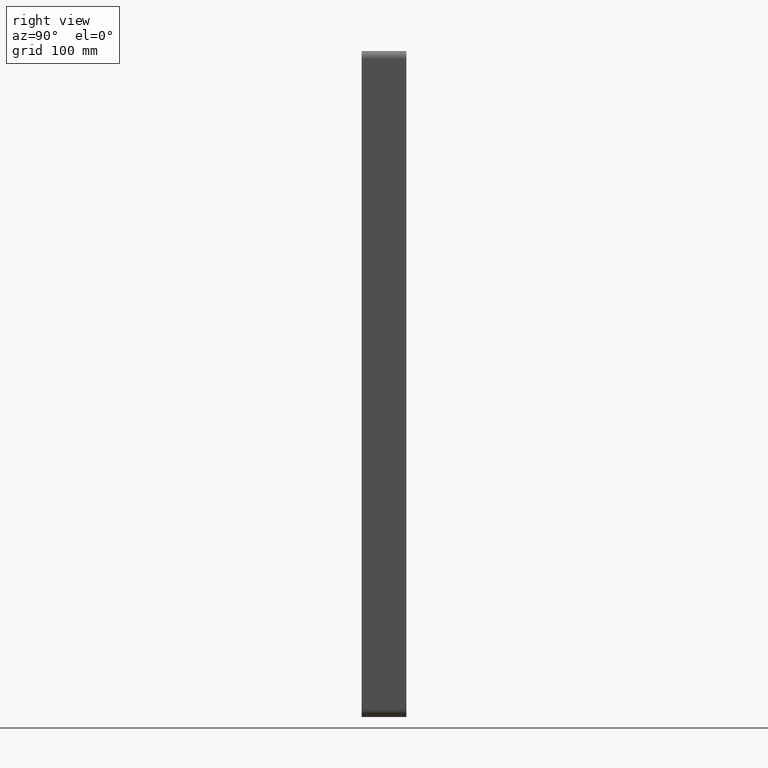
[diagram: clean part render]
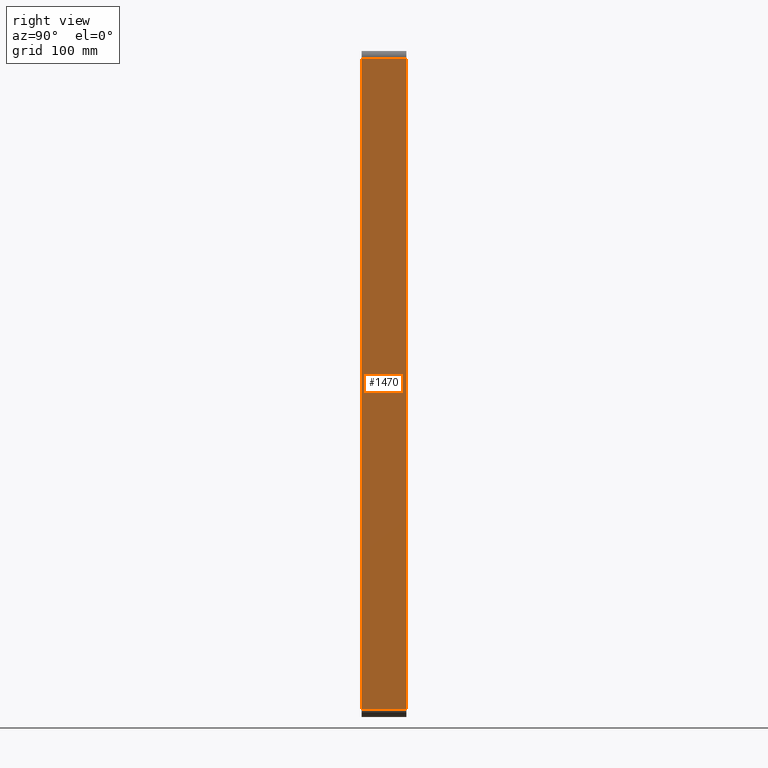
[diagram: same view with one face highlighted and labeled with its STEP entity id]
A machine part, right view. The second image highlights one B-rep face of the part: STEP entity #1470.
In plain terms, the highlighted planar face has unit normal (1, 0, 0).
Its self-contained STEP definition (entity closure, byte-faithful):
#563=CARTESIAN_POINT('',(200.75000000000003,57.0,-437.0));
#564=VERTEX_POINT('',#563);
#614=CARTESIAN_POINT('',(200.75000000000003,57.0,437.0));
#615=VERTEX_POINT('',#614);
#623=CARTESIAN_POINT('',(200.75000000000003,57.0,437.0));
#624=DIRECTION('',(0.0,0.0,-1.0));
#625=VECTOR('',#624,874.0);
#626=LINE('',#623,#625);
#627=EDGE_CURVE('',#615,#564,#626,.T.);
#991=CARTESIAN_POINT('',(200.75000000000003,-3.0,-437.0));
#992=VERTEX_POINT('',#991);
#1002=CARTESIAN_POINT('',(200.75000000000003,-3.0,437.0));
#1003=VERTEX_POINT('',#1002);
#1004=CARTESIAN_POINT('',(200.75000000000003,-3.0,-437.0));
#1005=DIRECTION('',(0.0,0.0,1.0));
#1006=VECTOR('',#1005,874.0);
#1007=LINE('',#1004,#1006);
#1008=EDGE_CURVE('',#992,#1003,#1007,.T.);
#1438=CARTESIAN_POINT('',(200.75000000000003,57.0,-437.0));
#1439=DIRECTION('',(0.0,-1.0,0.0));
#1440=VECTOR('',#1439,60.0);
#1441=LINE('',#1438,#1440);
#1442=EDGE_CURVE('',#564,#992,#1441,.T.);
#1454=CARTESIAN_POINT('',(200.75000000000003,0.0,447.0));
#1455=DIRECTION('',(1.0,0.0,0.0));
#1456=DIRECTION('',(0.0,0.0,-1.0));
#1457=AXIS2_PLACEMENT_3D('',#1454,#1455,#1456);
#1458=PLANE('',#1457);
#1459=ORIENTED_EDGE('',*,*,#1442,.F.);
#1460=ORIENTED_EDGE('',*,*,#627,.F.);
#1461=CARTESIAN_POINT('',(200.75000000000003,-3.0,437.0));
#1462=DIRECTION('',(0.0,1.0,0.0));
#1463=VECTOR('',#1462,60.0);
#1464=LINE('',#1461,#1463);
#1465=EDGE_CURVE('',#1003,#615,#1464,.T.);
#1466=ORIENTED_EDGE('',*,*,#1465,.F.);
#1467=ORIENTED_EDGE('',*,*,#1008,.F.);
#1468=EDGE_LOOP('',(#1459,#1460,#1466,#1467));
#1469=FACE_OUTER_BOUND('',#1468,.T.);
#1470=ADVANCED_FACE('',(#1469),#1458,.T.);